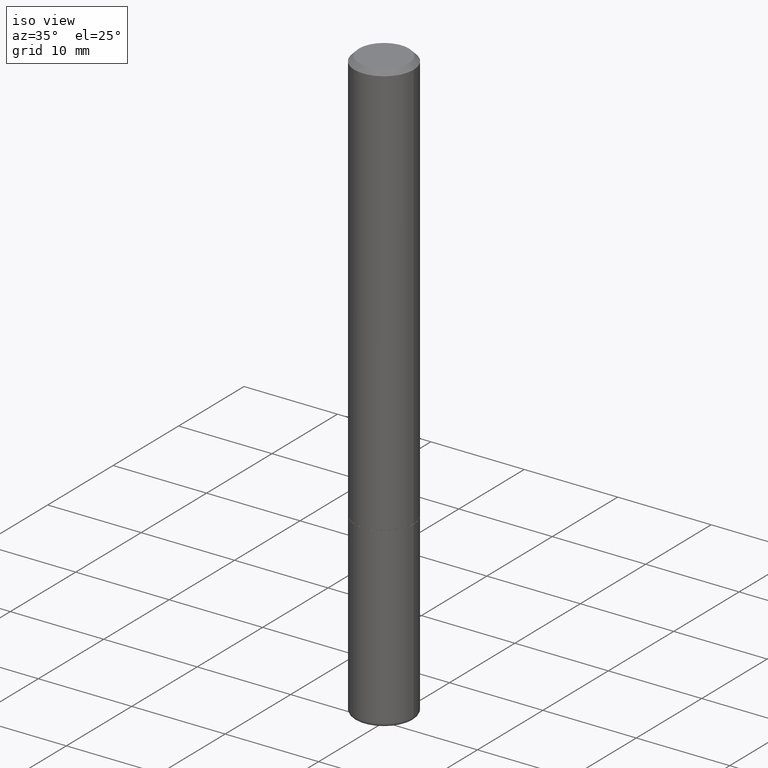
[diagram: clean part render]
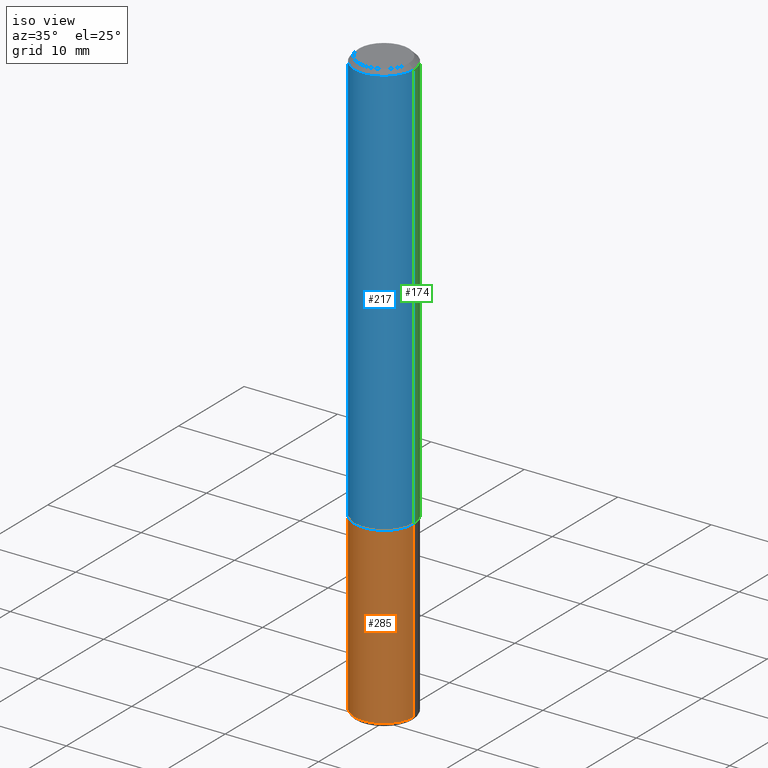
[diagram: same view with three faces highlighted in distinct colors, each labeled with its STEP entity id]
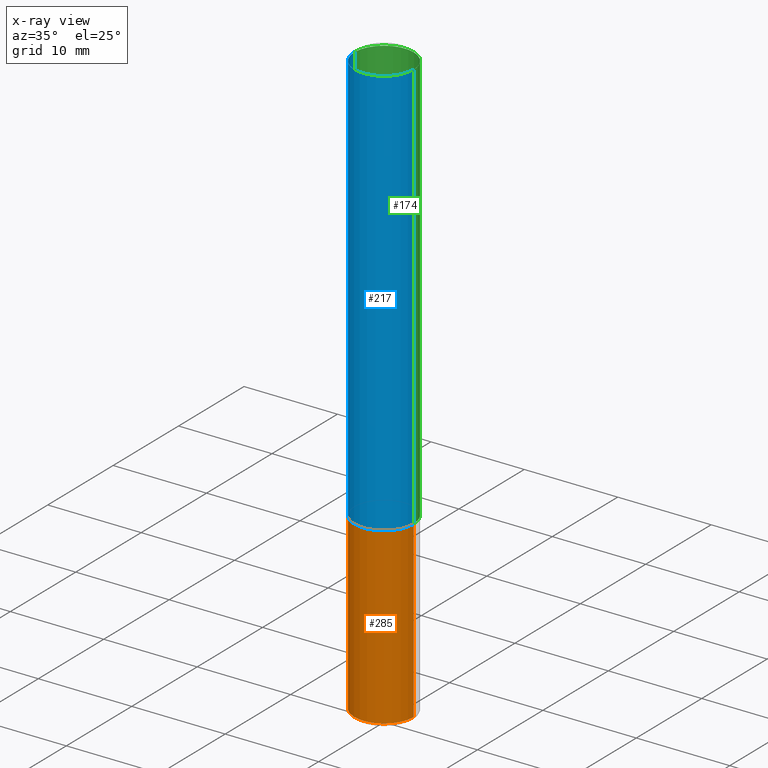
[diagram: x-ray of the same camera — body ghosted, the three highlighted faces saturated]
A machine part, iso view with three faces highlighted in distinct colors.
The next image is the same camera in x-ray (body ghosted, the three faces saturated) — at least one of them is partly hidden behind the body in this view.
Their STEP definitions:

[orange] entity #285 — the highlighted cylindrical surface (edge-blend (fillet) strip) has radius 3.175 mm, axis along (-0, 0, 1).
#4 = CARTESIAN_POINT ( 'NONE',  ( -0.1250000000000000555, -7.788152707325091448E-15, -2.484999999999999876 ) ) ;
#11 = CARTESIAN_POINT ( 'NONE',  ( -0.1250000000000000000, 8.881784197001252323E-16, -6.148668862818632227E-30 ) ) ;
#21 = VECTOR ( 'NONE', #131, 39.37007874015748143 ) ;
#29 = DIRECTION ( 'NONE',  ( 1.000000000000000000, -6.982962677686266711E-15, 4.876176775795935793E-29 ) ) ;
#47 = CARTESIAN_POINT ( 'NONE',  ( 0.1250000000000000000, -6.982962677686288010E-15, -1.750000000000000222 ) ) ;
#50 = FACE_OUTER_BOUND ( 'NONE', #148, .T. ) ;
#54 = ORIENTED_EDGE ( 'NONE', *, *, #238, .T. ) ;
#55 = VERTEX_POINT ( 'NONE', #47 ) ;
#57 = CARTESIAN_POINT ( 'NONE',  ( 0.1250000000000000555, -9.549201461736000019E-15, -2.484999999999999876 ) ) ;
#90 = VERTEX_POINT ( 'NONE', #4 ) ;
#91 = AXIS2_PLACEMENT_3D ( 'NONE', #371, #336, #269 ) ;
#130 = VECTOR ( 'NONE', #227, 39.37007874015748143 ) ;
#131 = DIRECTION ( 'NONE',  ( -2.445468806185136877E-29, 3.491481338843145188E-15, 1.000000000000000000 ) ) ;
#136 = AXIS2_PLACEMENT_3D ( 'NONE', #231, #277, #29 ) ;
#148 = EDGE_LOOP ( 'NONE', ( #214, #272, #54, #172 ) ) ;
#149 = AXIS2_PLACEMENT_3D ( 'NONE', #171, #169, #201 ) ;
#169 = DIRECTION ( 'NONE',  ( -2.445468806185136597E-29, 3.491481338843145583E-15, 1.000000000000000000 ) ) ;
#171 = CARTESIAN_POINT ( 'NONE',  ( 6.076989983370064174E-29, -8.676331127025216680E-15, -2.484999999999999876 ) ) ;
#172 = ORIENTED_EDGE ( 'NONE', *, *, #250, .F. ) ;
#201 = DIRECTION ( 'NONE',  ( 1.000000000000000000, -6.982962677686270655E-15, 0.000000000000000000 ) ) ;
#214 = ORIENTED_EDGE ( 'NONE', *, *, #354, .F. ) ;
#215 = CIRCLE ( 'NONE', #149, 0.1250000000000000000 ) ;
#227 = DIRECTION ( 'NONE',  ( -2.445468806185136877E-29, 3.491481338843145188E-15, 1.000000000000000000 ) ) ;
#231 = CARTESIAN_POINT ( 'NONE',  ( 0.000000000000000000, 0.000000000000000000, 0.000000000000000000 ) ) ;
#238 = EDGE_CURVE ( 'NONE', #279, #55, #261, .T. ) ;
#250 = EDGE_CURVE ( 'NONE', #387, #55, #337, .T. ) ;
#261 = LINE ( 'NONE', #262, #130 ) ;
#262 = CARTESIAN_POINT ( 'NONE',  ( 0.1250000000000000000, -8.728703347107833388E-16, 6.095220969744919741E-30 ) ) ;
#269 = DIRECTION ( 'NONE',  ( 1.000000000000000000, -6.982962677686262766E-15, 0.000000000000000000 ) ) ;
#272 = ORIENTED_EDGE ( 'NONE', *, *, #281, .T. ) ;
#277 = DIRECTION ( 'NONE',  ( -2.445468806185136597E-29, 3.491481338843145583E-15, 1.000000000000000000 ) ) ;
#279 = VERTEX_POINT ( 'NONE', #57 ) ;
#281 = EDGE_CURVE ( 'NONE', #90, #279, #215, .T. ) ;
#285 = ADVANCED_FACE ( 'NONE', ( #50 ), #304, .T. ) ;
#296 = LINE ( 'NONE', #11, #21 ) ;
#304 = CYLINDRICAL_SURFACE ( 'NONE', #136, 0.1250000000000000000 ) ;
#336 = DIRECTION ( 'NONE',  ( -2.445468806185136597E-29, 3.491481338843145583E-15, 1.000000000000000000 ) ) ;
#337 = CIRCLE ( 'NONE', #91, 0.1250000000000000000 ) ;
#354 = EDGE_CURVE ( 'NONE', #90, #387, #296, .T. ) ;
#371 = CARTESIAN_POINT ( 'NONE',  ( 4.279570410823989044E-29, -6.110092342975505460E-15, -1.750000000000000222 ) ) ;
#387 = VERTEX_POINT ( 'NONE', #394 ) ;
#394 = CARTESIAN_POINT ( 'NONE',  ( -0.1250000000000000000, -6.505033315300235838E-15, -1.750000000000000222 ) ) ;

[blue] entity #217 — the highlighted cylindrical surface (edge-blend (fillet) strip) has radius 3.175 mm, axis along (-0, 0, 1).
#23 = VERTEX_POINT ( 'NONE', #51 ) ;
#31 = EDGE_CURVE ( 'NONE', #23, #418, #42, .T. ) ;
#42 = CIRCLE ( 'NONE', #381, 0.1250000000000001943 ) ;
#45 = DIRECTION ( 'NONE',  ( -2.445468806185136597E-29, 3.491481338843145583E-15, 1.000000000000000000 ) ) ;
#51 = CARTESIAN_POINT ( 'NONE',  ( -0.1250000000000001943, -2.200036824506633304E-15, -1.749000000000000110 ) ) ;
#56 = CIRCLE ( 'NONE', #81, 0.1249999999999999584 ) ;
#81 = AXIS2_PLACEMENT_3D ( 'NONE', #260, #400, #108 ) ;
#108 = DIRECTION ( 'NONE',  ( 1.000000000000000000, -6.982962677686267499E-15, 0.000000000000000000 ) ) ;
#112 = DIRECTION ( 'NONE',  ( 1.000000000000000000, -6.982962677686267499E-15, 0.000000000000000000 ) ) ;
#115 = ORIENTED_EDGE ( 'NONE', *, *, #31, .T. ) ;
#119 = CARTESIAN_POINT ( 'NONE',  ( 0.1250000000000001943, -6.979471196347446580E-15, -1.749000000000000110 ) ) ;
#125 = LINE ( 'NONE', #252, #257 ) ;
#158 = LINE ( 'NONE', #251, #360 ) ;
#176 = ORIENTED_EDGE ( 'NONE', *, *, #386, .T. ) ;
#198 = CARTESIAN_POINT ( 'NONE',  ( 4.277124942017804562E-29, -6.106600861636661664E-15, -1.749000000000000110 ) ) ;
#206 = EDGE_CURVE ( 'NONE', #23, #273, #158, .T. ) ;
#217 = ADVANCED_FACE ( 'NONE', ( #226 ), #399, .T. ) ;
#226 = FACE_OUTER_BOUND ( 'NONE', #244, .T. ) ;
#244 = EDGE_LOOP ( 'NONE', ( #350, #115, #176, #315 ) ) ;
#251 = CARTESIAN_POINT ( 'NONE',  ( -0.1250000000000000555, 8.881784197001256268E-16, -6.148668862818635730E-30 ) ) ;
#252 = CARTESIAN_POINT ( 'NONE',  ( 0.1250000000000000555, -8.728703347107838319E-16, 6.095220969744923244E-30 ) ) ;
#257 = VECTOR ( 'NONE', #325, 39.37007874015748143 ) ;
#260 = CARTESIAN_POINT ( 'NONE',  ( 4.890937612370288923E-31, -6.982962677686312563E-17, -0.02000000000000006287 ) ) ;
#273 = VERTEX_POINT ( 'NONE', #343 ) ;
#280 = VERTEX_POINT ( 'NONE', #412 ) ;
#291 = DIRECTION ( 'NONE',  ( 1.000000000000000000, -6.982962677686267499E-15, 4.876176775795936353E-29 ) ) ;
#294 = DIRECTION ( 'NONE',  ( -2.445468806185136877E-29, 3.491481338843145188E-15, 1.000000000000000000 ) ) ;
#315 = ORIENTED_EDGE ( 'NONE', *, *, #373, .F. ) ;
#324 = CARTESIAN_POINT ( 'NONE',  ( 0.000000000000000000, 0.000000000000000000, 0.000000000000000000 ) ) ;
#325 = DIRECTION ( 'NONE',  ( -2.445468806185136877E-29, 3.491481338843145188E-15, 1.000000000000000000 ) ) ;
#330 = AXIS2_PLACEMENT_3D ( 'NONE', #324, #367, #291 ) ;
#343 = CARTESIAN_POINT ( 'NONE',  ( -0.1249999999999999584, 8.030407079339200406E-16, -0.02000000000000006287 ) ) ;
#350 = ORIENTED_EDGE ( 'NONE', *, *, #206, .F. ) ;
#360 = VECTOR ( 'NONE', #294, 39.37007874015748143 ) ;
#367 = DIRECTION ( 'NONE',  ( -2.445468806185136597E-29, 3.491481338843145583E-15, 1.000000000000000000 ) ) ;
#373 = EDGE_CURVE ( 'NONE', #273, #280, #56, .T. ) ;
#381 = AXIS2_PLACEMENT_3D ( 'NONE', #198, #45, #112 ) ;
#386 = EDGE_CURVE ( 'NONE', #418, #280, #125, .T. ) ;
#399 = CYLINDRICAL_SURFACE ( 'NONE', #330, 0.1250000000000000555 ) ;
#400 = DIRECTION ( 'NONE',  ( -2.445468806185136597E-29, 3.491481338843145583E-15, 1.000000000000000000 ) ) ;
#412 = CARTESIAN_POINT ( 'NONE',  ( 0.1249999999999999584, -9.273918764983043491E-16, -0.02000000000000006287 ) ) ;
#418 = VERTEX_POINT ( 'NONE', #119 ) ;

[green] entity #174 — the highlighted cylindrical surface (edge-blend (fillet) strip) has radius 3.175 mm, axis along (-0, 0, 1).
#17 = ORIENTED_EDGE ( 'NONE', *, *, #334, .F. ) ;
#23 = VERTEX_POINT ( 'NONE', #51 ) ;
#51 = CARTESIAN_POINT ( 'NONE',  ( -0.1250000000000001943, -2.200036824506633304E-15, -1.749000000000000110 ) ) ;
#66 = CARTESIAN_POINT ( 'NONE',  ( 0.000000000000000000, 0.000000000000000000, 0.000000000000000000 ) ) ;
#68 = DIRECTION ( 'NONE',  ( 1.000000000000000000, -6.982962677686267499E-15, 4.876176775795936353E-29 ) ) ;
#83 = DIRECTION ( 'NONE',  ( -2.445468806185136597E-29, 3.491481338843145583E-15, 1.000000000000000000 ) ) ;
#89 = ORIENTED_EDGE ( 'NONE', *, *, #259, .T. ) ;
#118 = ORIENTED_EDGE ( 'NONE', *, *, #386, .F. ) ;
#119 = CARTESIAN_POINT ( 'NONE',  ( 0.1250000000000001943, -6.979471196347446580E-15, -1.749000000000000110 ) ) ;
#125 = LINE ( 'NONE', #252, #257 ) ;
#129 = AXIS2_PLACEMENT_3D ( 'NONE', #66, #320, #68 ) ;
#135 = DIRECTION ( 'NONE',  ( 1.000000000000000000, -6.982962677686267499E-15, 0.000000000000000000 ) ) ;
#140 = CARTESIAN_POINT ( 'NONE',  ( 4.277124942017804562E-29, -6.106600861636661664E-15, -1.749000000000000110 ) ) ;
#158 = LINE ( 'NONE', #251, #360 ) ;
#167 = CARTESIAN_POINT ( 'NONE',  ( 4.890937612370288923E-31, -6.982962677686312563E-17, -0.02000000000000006287 ) ) ;
#170 = AXIS2_PLACEMENT_3D ( 'NONE', #167, #83, #135 ) ;
#174 = ADVANCED_FACE ( 'NONE', ( #362 ), #216, .T. ) ;
#179 = EDGE_LOOP ( 'NONE', ( #89, #341, #17, #118 ) ) ;
#186 = CIRCLE ( 'NONE', #170, 0.1249999999999999584 ) ;
#202 = CIRCLE ( 'NONE', #322, 0.1250000000000001943 ) ;
#204 = DIRECTION ( 'NONE',  ( -2.445468806185136597E-29, 3.491481338843145583E-15, 1.000000000000000000 ) ) ;
#206 = EDGE_CURVE ( 'NONE', #23, #273, #158, .T. ) ;
#216 = CYLINDRICAL_SURFACE ( 'NONE', #129, 0.1250000000000000555 ) ;
#251 = CARTESIAN_POINT ( 'NONE',  ( -0.1250000000000000555, 8.881784197001256268E-16, -6.148668862818635730E-30 ) ) ;
#252 = CARTESIAN_POINT ( 'NONE',  ( 0.1250000000000000555, -8.728703347107838319E-16, 6.095220969744923244E-30 ) ) ;
#257 = VECTOR ( 'NONE', #325, 39.37007874015748143 ) ;
#259 = EDGE_CURVE ( 'NONE', #418, #23, #202, .T. ) ;
#273 = VERTEX_POINT ( 'NONE', #343 ) ;
#280 = VERTEX_POINT ( 'NONE', #412 ) ;
#294 = DIRECTION ( 'NONE',  ( -2.445468806185136877E-29, 3.491481338843145188E-15, 1.000000000000000000 ) ) ;
#312 = DIRECTION ( 'NONE',  ( 1.000000000000000000, -6.982962677686267499E-15, 0.000000000000000000 ) ) ;
#320 = DIRECTION ( 'NONE',  ( -2.445468806185136597E-29, 3.491481338843145583E-15, 1.000000000000000000 ) ) ;
#322 = AXIS2_PLACEMENT_3D ( 'NONE', #140, #204, #312 ) ;
#325 = DIRECTION ( 'NONE',  ( -2.445468806185136877E-29, 3.491481338843145188E-15, 1.000000000000000000 ) ) ;
#334 = EDGE_CURVE ( 'NONE', #280, #273, #186, .T. ) ;
#341 = ORIENTED_EDGE ( 'NONE', *, *, #206, .T. ) ;
#343 = CARTESIAN_POINT ( 'NONE',  ( -0.1249999999999999584, 8.030407079339200406E-16, -0.02000000000000006287 ) ) ;
#360 = VECTOR ( 'NONE', #294, 39.37007874015748143 ) ;
#362 = FACE_OUTER_BOUND ( 'NONE', #179, .T. ) ;
#386 = EDGE_CURVE ( 'NONE', #418, #280, #125, .T. ) ;
#412 = CARTESIAN_POINT ( 'NONE',  ( 0.1249999999999999584, -9.273918764983043491E-16, -0.02000000000000006287 ) ) ;
#418 = VERTEX_POINT ( 'NONE', #119 ) ;